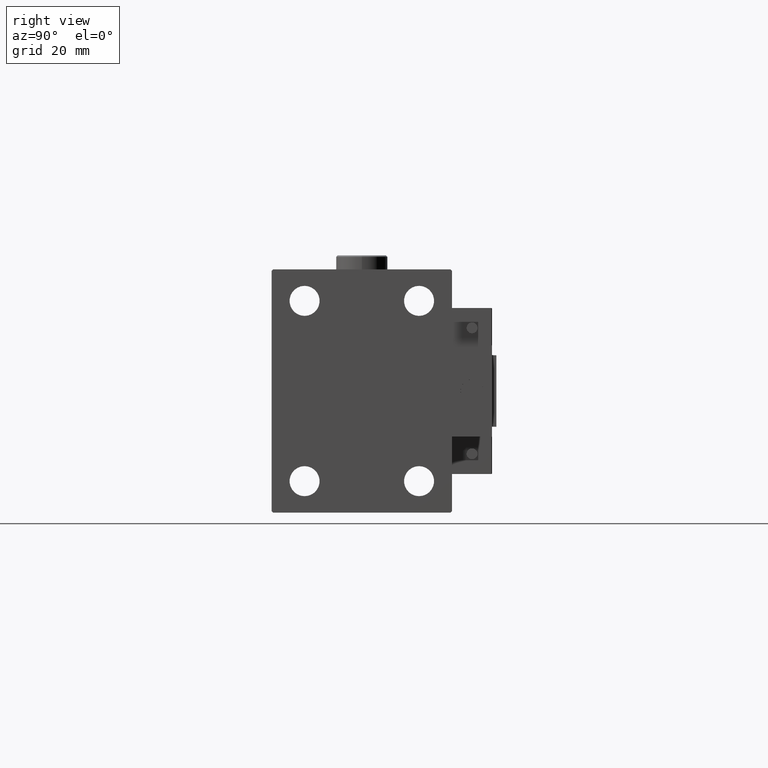
[diagram: clean part render]
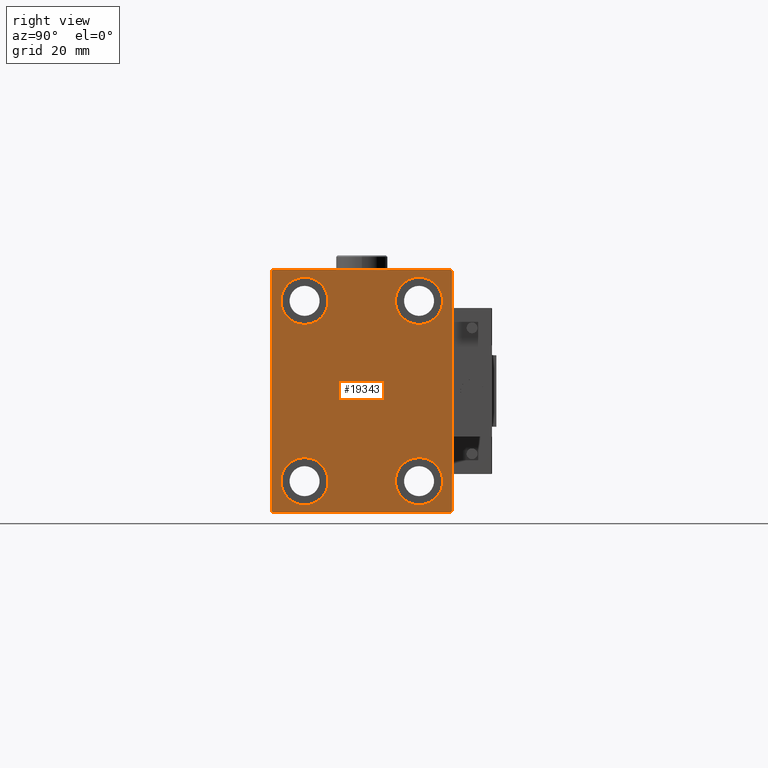
[diagram: same view with one face highlighted and labeled with its STEP entity id]
A machine part, right view. The second image highlights one B-rep face of the part: STEP entity #19343.
In plain terms, the highlighted planar face has unit normal (1, 0, 0).
Its self-contained STEP definition (entity closure, byte-faithful):
#292 = AXIS2_PLACEMENT_3D ( 'NONE', #6156, #10542, #19595 ) ;
#456 = EDGE_LOOP ( 'NONE', ( #37756, #20438 ) ) ;
#586 = PLANE ( 'NONE',  #38354 ) ;
#668 = DIRECTION ( 'NONE',  ( -0.000000000000000000, 0.7071067811865376918, -0.7071067811865573427 ) ) ;
#1252 = VERTEX_POINT ( 'NONE', #27798 ) ;
#1272 = LINE ( 'NONE', #34802, #28327 ) ;
#1540 = DIRECTION ( 'NONE',  ( 0.000000000000000000, -1.000000000000000000, -2.202823461557850341E-16 ) ) ;
#1743 = EDGE_CURVE ( 'NONE', #11837, #43004, #30991, .T. ) ;
#1943 = DIRECTION ( 'NONE',  ( -1.000000000000000000, -0.000000000000000000, -0.000000000000000000 ) ) ;
#2131 = CARTESIAN_POINT ( 'NONE',  ( 93.00000000000000000, 19.99999999999999645, -31.49999999999999289 ) ) ;
#2555 = CIRCLE ( 'NONE', #10441, 8.250000000000000000 ) ;
#2631 = AXIS2_PLACEMENT_3D ( 'NONE', #41586, #31949, #6946 ) ;
#2632 = DIRECTION ( 'NONE',  ( 0.000000000000000000, 0.000000000000000000, -1.000000000000000000 ) ) ;
#3372 = VERTEX_POINT ( 'NONE', #23376 ) ;
#3474 = VERTEX_POINT ( 'NONE', #41246 ) ;
#3865 = AXIS2_PLACEMENT_3D ( 'NONE', #53738, #7820, #16607 ) ;
#4444 = FACE_BOUND ( 'NONE', #456, .T. ) ;
#5588 = DIRECTION ( 'NONE',  ( -0.000000000000000000, 0.7071067811865573427, 0.7071067811865376918 ) ) ;
#5629 = EDGE_CURVE ( 'NONE', #3474, #12217, #38809, .T. ) ;
#6156 = CARTESIAN_POINT ( 'NONE',  ( 93.00000000000000000, -20.00000000000000355, -31.49999999999999289 ) ) ;
#6485 = CARTESIAN_POINT ( 'NONE',  ( 93.00000000000000000, -31.50000000000000000, 42.49999999999999289 ) ) ;
#6751 = AXIS2_PLACEMENT_3D ( 'NONE', #45088, #1943, #52507 ) ;
#6856 = EDGE_CURVE ( 'NONE', #27983, #10390, #1272, .T. ) ;
#6946 = DIRECTION ( 'NONE',  ( 0.000000000000000000, 0.000000000000000000, 1.000000000000000000 ) ) ;
#7820 = DIRECTION ( 'NONE',  ( -1.000000000000000000, -0.000000000000000000, -0.000000000000000000 ) ) ;
#8889 = EDGE_CURVE ( 'NONE', #41080, #40369, #12493, .T. ) ;
#9507 = EDGE_CURVE ( 'NONE', #12310, #3372, #25815, .T. ) ;
#9582 = DIRECTION ( 'NONE',  ( 0.000000000000000000, -1.632680918566406300E-16, 1.000000000000000000 ) ) ;
#10110 = CARTESIAN_POINT ( 'NONE',  ( 93.00000000000000000, 31.00000000000000000, 42.50000000000000711 ) ) ;
#10390 = VERTEX_POINT ( 'NONE', #35670 ) ;
#10441 = AXIS2_PLACEMENT_3D ( 'NONE', #2131, #48840, #36457 ) ;
#10542 = DIRECTION ( 'NONE',  ( -1.000000000000000000, -0.000000000000000000, -0.000000000000000000 ) ) ;
#11500 = LINE ( 'NONE', #22347, #24316 ) ;
#11546 = VECTOR ( 'NONE', #22052, 999.9999999999998863 ) ;
#11837 = VERTEX_POINT ( 'NONE', #40204 ) ;
#12217 = VERTEX_POINT ( 'NONE', #15398 ) ;
#12310 = VERTEX_POINT ( 'NONE', #53921 ) ;
#12379 = DIRECTION ( 'NONE',  ( 0.000000000000000000, 0.000000000000000000, 1.000000000000000000 ) ) ;
#12493 = LINE ( 'NONE', #30086, #52994 ) ;
#13861 = CARTESIAN_POINT ( 'NONE',  ( 93.00000000000000000, -31.50000000000000000, -42.00000000000002132 ) ) ;
#13928 = CIRCLE ( 'NONE', #52550, 8.249999999999992895 ) ;
#14522 = VERTEX_POINT ( 'NONE', #33783 ) ;
#14749 = LINE ( 'NONE', #23292, #37546 ) ;
#15038 = CARTESIAN_POINT ( 'NONE',  ( 93.00000000000000000, -20.00000000000000355, -23.24999999999999289 ) ) ;
#15163 = EDGE_CURVE ( 'NONE', #10390, #14522, #14749, .T. ) ;
#15190 = DIRECTION ( 'NONE',  ( -1.000000000000000000, -0.000000000000000000, -0.000000000000000000 ) ) ;
#15398 = CARTESIAN_POINT ( 'NONE',  ( 93.00000000000000000, 20.00000000000000355, 39.74999999999999289 ) ) ;
#15728 = ORIENTED_EDGE ( 'NONE', *, *, #24664, .T. ) ;
#15976 = ORIENTED_EDGE ( 'NONE', *, *, #6856, .T. ) ;
#16438 = VERTEX_POINT ( 'NONE', #19105 ) ;
#16607 = DIRECTION ( 'NONE',  ( 0.000000000000000000, 0.000000000000000000, 1.000000000000000000 ) ) ;
#17079 = FACE_BOUND ( 'NONE', #50624, .T. ) ;
#17472 = ORIENTED_EDGE ( 'NONE', *, *, #26512, .T. ) ;
#17819 = CARTESIAN_POINT ( 'NONE',  ( 93.00000000000000000, 31.50000000000001421, -42.50000000000000711 ) ) ;
#18178 = ORIENTED_EDGE ( 'NONE', *, *, #5629, .T. ) ;
#18443 = EDGE_CURVE ( 'NONE', #40991, #11837, #11500, .T. ) ;
#19105 = CARTESIAN_POINT ( 'NONE',  ( 93.00000000000000000, 19.99999999999999645, -23.24999999999999289 ) ) ;
#19343 = ADVANCED_FACE ( 'NONE', ( #4444, #25864, #29721, #17079, #41824 ), #586, .T. ) ;
#19595 = DIRECTION ( 'NONE',  ( 0.000000000000000000, 0.000000000000000000, 1.000000000000000000 ) ) ;
#19860 = ORIENTED_EDGE ( 'NONE', *, *, #38190, .T. ) ;
#20438 = ORIENTED_EDGE ( 'NONE', *, *, #29425, .T. ) ;
#20665 = ORIENTED_EDGE ( 'NONE', *, *, #47465, .T. ) ;
#20682 = LINE ( 'NONE', #51205, #11546 ) ;
#21178 = DIRECTION ( 'NONE',  ( -1.000000000000000000, -0.000000000000000000, -0.000000000000000000 ) ) ;
#21674 = DIRECTION ( 'NONE',  ( 0.000000000000000000, 1.000000000000000000, 0.000000000000000000 ) ) ;
#22050 = ORIENTED_EDGE ( 'NONE', *, *, #1743, .T. ) ;
#22052 = DIRECTION ( 'NONE',  ( -0.000000000000000000, -0.7071067811865376918, 0.7071067811865574537 ) ) ;
#22347 = CARTESIAN_POINT ( 'NONE',  ( 93.00000000000000000, 36.74999999999958789, -36.75000000000061107 ) ) ;
#23224 = EDGE_LOOP ( 'NONE', ( #15976, #40503, #32433, #29256, #15728, #34448, #22050, #26723 ) ) ;
#23292 = CARTESIAN_POINT ( 'NONE',  ( 93.00000000000000000, -36.74999999999998579, 36.74999999999998579 ) ) ;
#23376 = CARTESIAN_POINT ( 'NONE',  ( 93.00000000000000000, -19.99999999999999645, 23.25000000000000355 ) ) ;
#24316 = VECTOR ( 'NONE', #5588, 1000.000000000000114 ) ;
#24565 = DIRECTION ( 'NONE',  ( 0.000000000000000000, 0.000000000000000000, 1.000000000000000000 ) ) ;
#24664 = EDGE_CURVE ( 'NONE', #40369, #40991, #25520, .T. ) ;
#25520 = LINE ( 'NONE', #51636, #34203 ) ;
#25625 = VECTOR ( 'NONE', #9582, 1000.000000000000000 ) ;
#25815 = CIRCLE ( 'NONE', #3865, 8.249999999999992895 ) ;
#25864 = FACE_BOUND ( 'NONE', #38016, .T. ) ;
#26246 = CARTESIAN_POINT ( 'NONE',  ( 93.00000000000000000, 31.00000000000002842, -42.50000000000000711 ) ) ;
#26512 = EDGE_CURVE ( 'NONE', #3372, #12310, #13928, .T. ) ;
#26655 = AXIS2_PLACEMENT_3D ( 'NONE', #42891, #21178, #43165 ) ;
#26723 = ORIENTED_EDGE ( 'NONE', *, *, #32962, .T. ) ;
#27365 = AXIS2_PLACEMENT_3D ( 'NONE', #33267, #50051, #12379 ) ;
#27375 = LINE ( 'NONE', #6485, #46870 ) ;
#27798 = CARTESIAN_POINT ( 'NONE',  ( 93.00000000000000000, -20.00000000000000355, -39.74999999999999289 ) ) ;
#27983 = VERTEX_POINT ( 'NONE', #10110 ) ;
#28042 = EDGE_CURVE ( 'NONE', #41419, #16438, #2555, .T. ) ;
#28327 = VECTOR ( 'NONE', #1540, 1000.000000000000000 ) ;
#29256 = ORIENTED_EDGE ( 'NONE', *, *, #8889, .T. ) ;
#29425 = EDGE_CURVE ( 'NONE', #16438, #41419, #50056, .T. ) ;
#29721 = FACE_BOUND ( 'NONE', #42523, .T. ) ;
#30086 = CARTESIAN_POINT ( 'NONE',  ( 93.00000000000000000, -36.75000000000045475, -36.74999999999943867 ) ) ;
#30991 = LINE ( 'NONE', #17819, #25625 ) ;
#31040 = CIRCLE ( 'NONE', #26655, 8.249999999999992895 ) ;
#31949 = DIRECTION ( 'NONE',  ( -1.000000000000000000, -0.000000000000000000, -0.000000000000000000 ) ) ;
#32433 = ORIENTED_EDGE ( 'NONE', *, *, #40754, .T. ) ;
#32523 = CARTESIAN_POINT ( 'NONE',  ( 93.00000000000000000, -19.99999999999999645, 31.50000000000000000 ) ) ;
#32962 = EDGE_CURVE ( 'NONE', #43004, #27983, #20682, .T. ) ;
#33000 = CARTESIAN_POINT ( 'NONE',  ( 93.00000000000000000, 19.99999999999999645, -39.74999999999999289 ) ) ;
#33267 = CARTESIAN_POINT ( 'NONE',  ( 93.00000000000000000, 20.00000000000000355, 31.50000000000000000 ) ) ;
#33567 = DIRECTION ( 'NONE',  ( 1.000000000000000000, 0.000000000000000000, 0.000000000000000000 ) ) ;
#33783 = CARTESIAN_POINT ( 'NONE',  ( 93.00000000000000000, -31.50000000000000000, 41.99999999999997868 ) ) ;
#34203 = VECTOR ( 'NONE', #21674, 1000.000000000000000 ) ;
#34448 = ORIENTED_EDGE ( 'NONE', *, *, #18443, .T. ) ;
#34802 = CARTESIAN_POINT ( 'NONE',  ( 93.00000000000000000, 31.50000000000000000, 42.50000000000000711 ) ) ;
#34836 = CIRCLE ( 'NONE', #6751, 8.250000000000000000 ) ;
#35670 = CARTESIAN_POINT ( 'NONE',  ( 93.00000000000000000, -30.99999999999998579, 42.49999999999999289 ) ) ;
#35879 = ORIENTED_EDGE ( 'NONE', *, *, #37653, .T. ) ;
#36457 = DIRECTION ( 'NONE',  ( 0.000000000000000000, 0.000000000000000000, 1.000000000000000000 ) ) ;
#37546 = VECTOR ( 'NONE', #40055, 1000.000000000000114 ) ;
#37653 = EDGE_CURVE ( 'NONE', #53361, #1252, #40652, .T. ) ;
#37756 = ORIENTED_EDGE ( 'NONE', *, *, #28042, .T. ) ;
#38016 = EDGE_LOOP ( 'NONE', ( #17472, #49069 ) ) ;
#38190 = EDGE_CURVE ( 'NONE', #12217, #3474, #31040, .T. ) ;
#38354 = AXIS2_PLACEMENT_3D ( 'NONE', #42639, #33567, #38781 ) ;
#38749 = CARTESIAN_POINT ( 'NONE',  ( 93.00000000000000000, -31.00000000000002842, -42.50000000000000711 ) ) ;
#38781 = DIRECTION ( 'NONE',  ( 0.000000000000000000, 0.000000000000000000, -1.000000000000000000 ) ) ;
#38809 = CIRCLE ( 'NONE', #27365, 8.249999999999992895 ) ;
#40055 = DIRECTION ( 'NONE',  ( 0.000000000000000000, -0.7071067811865474617, -0.7071067811865474617 ) ) ;
#40204 = CARTESIAN_POINT ( 'NONE',  ( 93.00000000000000000, 31.50000000000001421, -42.00000000000003553 ) ) ;
#40369 = VERTEX_POINT ( 'NONE', #38749 ) ;
#40503 = ORIENTED_EDGE ( 'NONE', *, *, #15163, .T. ) ;
#40652 = CIRCLE ( 'NONE', #292, 8.250000000000000000 ) ;
#40754 = EDGE_CURVE ( 'NONE', #14522, #41080, #27375, .T. ) ;
#40991 = VERTEX_POINT ( 'NONE', #26246 ) ;
#41080 = VERTEX_POINT ( 'NONE', #13861 ) ;
#41246 = CARTESIAN_POINT ( 'NONE',  ( 93.00000000000000000, 20.00000000000000355, 23.25000000000000355 ) ) ;
#41419 = VERTEX_POINT ( 'NONE', #33000 ) ;
#41586 = CARTESIAN_POINT ( 'NONE',  ( 93.00000000000000000, 19.99999999999999645, -31.49999999999999289 ) ) ;
#41824 = FACE_OUTER_BOUND ( 'NONE', #23224, .T. ) ;
#42523 = EDGE_LOOP ( 'NONE', ( #18178, #19860 ) ) ;
#42639 = CARTESIAN_POINT ( 'NONE',  ( 93.00000000000000000, 0.000000000000000000, 0.000000000000000000 ) ) ;
#42891 = CARTESIAN_POINT ( 'NONE',  ( 93.00000000000000000, 20.00000000000000355, 31.50000000000000000 ) ) ;
#43004 = VERTEX_POINT ( 'NONE', #52681 ) ;
#43165 = DIRECTION ( 'NONE',  ( 0.000000000000000000, 0.000000000000000000, 1.000000000000000000 ) ) ;
#45088 = CARTESIAN_POINT ( 'NONE',  ( 93.00000000000000000, -20.00000000000000355, -31.49999999999999289 ) ) ;
#46870 = VECTOR ( 'NONE', #2632, 1000.000000000000000 ) ;
#47465 = EDGE_CURVE ( 'NONE', #1252, #53361, #34836, .T. ) ;
#48840 = DIRECTION ( 'NONE',  ( -1.000000000000000000, -0.000000000000000000, -0.000000000000000000 ) ) ;
#49069 = ORIENTED_EDGE ( 'NONE', *, *, #9507, .T. ) ;
#50051 = DIRECTION ( 'NONE',  ( -1.000000000000000000, -0.000000000000000000, -0.000000000000000000 ) ) ;
#50056 = CIRCLE ( 'NONE', #2631, 8.250000000000000000 ) ;
#50624 = EDGE_LOOP ( 'NONE', ( #20665, #35879 ) ) ;
#51205 = CARTESIAN_POINT ( 'NONE',  ( 93.00000000000000000, 36.75000000000044054, 36.74999999999941735 ) ) ;
#51636 = CARTESIAN_POINT ( 'NONE',  ( 93.00000000000000000, -31.50000000000000000, -42.50000000000000711 ) ) ;
#52507 = DIRECTION ( 'NONE',  ( 0.000000000000000000, 0.000000000000000000, 1.000000000000000000 ) ) ;
#52550 = AXIS2_PLACEMENT_3D ( 'NONE', #32523, #15190, #24565 ) ;
#52681 = CARTESIAN_POINT ( 'NONE',  ( 93.00000000000000000, 31.50000000000000000, 41.99999999999999289 ) ) ;
#52994 = VECTOR ( 'NONE', #668, 1000.000000000000114 ) ;
#53361 = VERTEX_POINT ( 'NONE', #15038 ) ;
#53738 = CARTESIAN_POINT ( 'NONE',  ( 93.00000000000000000, -19.99999999999999645, 31.50000000000000000 ) ) ;
#53921 = CARTESIAN_POINT ( 'NONE',  ( 93.00000000000000000, -19.99999999999999645, 39.74999999999999289 ) ) ;